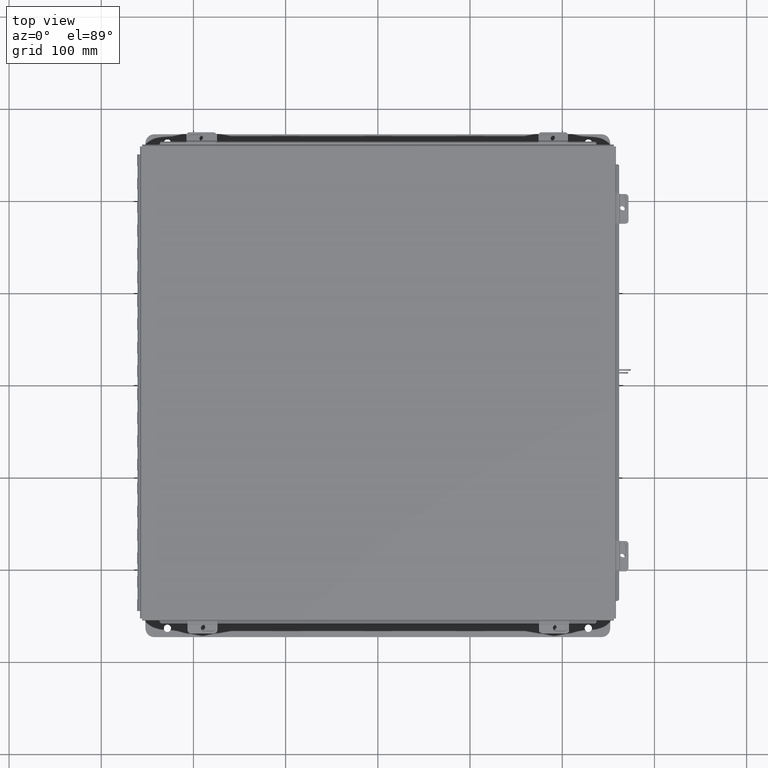
[diagram: clean part render]
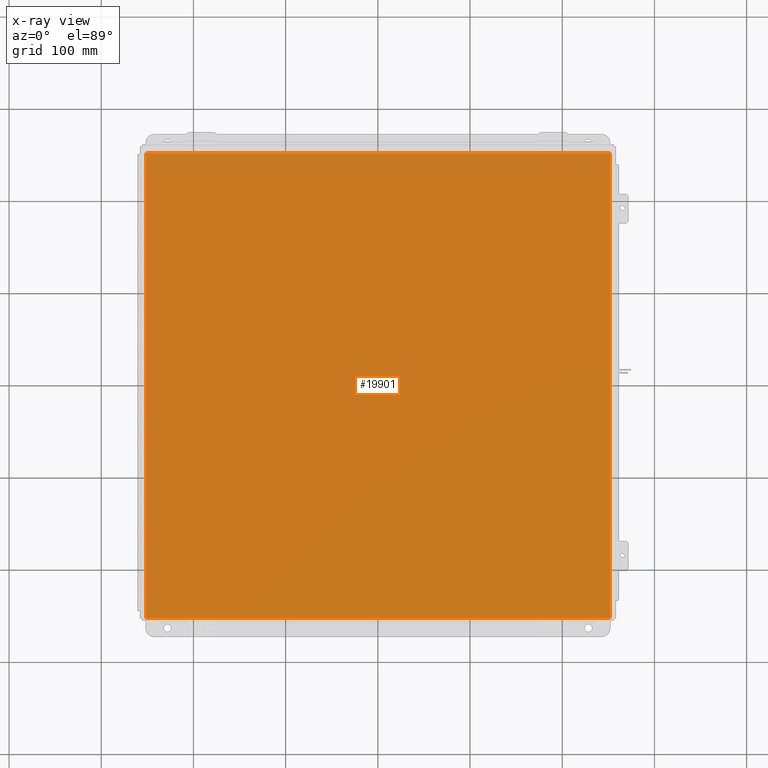
[diagram: x-ray — body ghosted, one internal face saturated and labeled with its STEP entity id]
A machine part, top view, then the same camera in x-ray: the body is ghosted and one INTERNAL B-rep face — a face not visible from any outside direction — is saturated and labeled: STEP entity #19901.
In plain terms, the highlighted planar face has unit normal (0, 0, -1).
Its self-contained STEP definition (entity closure, byte-faithful):
#122 = CARTESIAN_POINT ( 'NONE',  ( -9.912299999999998300, 9.925300000000001800, 5.122214988120493500E-017 ) ) ;
#128 = ORIENTED_EDGE ( 'NONE', *, *, #3483, .F. ) ;
#246 = LINE ( 'NONE', #10780, #4272 ) ;
#961 = VERTEX_POINT ( 'NONE', #18680 ) ;
#1749 = ORIENTED_EDGE ( 'NONE', *, *, #22053, .T. ) ;
#3483 = EDGE_CURVE ( 'NONE', #16653, #16713, #4765, .T. ) ;
#3536 = FACE_OUTER_BOUND ( 'NONE', #4971, .T. ) ;
#4272 = VECTOR ( 'NONE', #12456, 39.37007874015748100 ) ;
#4444 = CARTESIAN_POINT ( 'NONE',  ( 0.0000000000000000000, 0.0000000000000000000, 0.0000000000000000000 ) ) ;
#4765 = LINE ( 'NONE', #13376, #5286 ) ;
#4971 = EDGE_LOOP ( 'NONE', ( #5531, #12548, #128, #1749 ) ) ;
#5286 = VECTOR ( 'NONE', #14587, 39.37007874015748100 ) ;
#5531 = ORIENTED_EDGE ( 'NONE', *, *, #9226, .F. ) ;
#5836 = DIRECTION ( 'NONE',  ( 1.000000000000000000, 0.0000000000000000000, 0.0000000000000000000 ) ) ;
#6964 = VECTOR ( 'NONE', #7130, 39.37007874015748100 ) ;
#7130 = DIRECTION ( 'NONE',  ( -0.0000000000000000000, -1.000000000000000000, -0.0000000000000000000 ) ) ;
#7866 = DIRECTION ( 'NONE',  ( 0.0000000000000000000, 0.0000000000000000000, -1.000000000000000000 ) ) ;
#9226 = EDGE_CURVE ( 'NONE', #961, #13601, #12089, .T. ) ;
#9938 = EDGE_CURVE ( 'NONE', #961, #16713, #246, .T. ) ;
#10195 = AXIS2_PLACEMENT_3D ( 'NONE', #4444, #7866, #20071 ) ;
#10780 = CARTESIAN_POINT ( 'NONE',  ( -9.999999999999998200, 9.925300000000001800, 0.0000000000000000000 ) ) ;
#12089 = LINE ( 'NONE', #14074, #6964 ) ;
#12456 = DIRECTION ( 'NONE',  ( -1.000000000000000000, -0.0000000000000000000, -0.0000000000000000000 ) ) ;
#12548 = ORIENTED_EDGE ( 'NONE', *, *, #9938, .T. ) ;
#12692 = CARTESIAN_POINT ( 'NONE',  ( -9.999999999999998200, -9.925299999999998200, 0.0000000000000000000 ) ) ;
#12876 = VECTOR ( 'NONE', #5836, 39.37007874015748100 ) ;
#13003 = PLANE ( 'NONE',  #10195 ) ;
#13376 = CARTESIAN_POINT ( 'NONE',  ( -9.912299999999998300, -9.925299999999998200, 5.122214988120493500E-017 ) ) ;
#13433 = LINE ( 'NONE', #12692, #12876 ) ;
#13601 = VERTEX_POINT ( 'NONE', #14500 ) ;
#13693 = CARTESIAN_POINT ( 'NONE',  ( -9.912299999999998300, -9.925299999999992900, 5.122214988120493500E-017 ) ) ;
#14074 = CARTESIAN_POINT ( 'NONE',  ( 9.912300000000001900, 9.925300000000001800, 5.122214988120493500E-017 ) ) ;
#14500 = CARTESIAN_POINT ( 'NONE',  ( 9.912300000000001900, -9.925299999999998200, 5.122214988120493500E-017 ) ) ;
#14587 = DIRECTION ( 'NONE',  ( -0.0000000000000000000, 1.000000000000000000, -0.0000000000000000000 ) ) ;
#16653 = VERTEX_POINT ( 'NONE', #13693 ) ;
#16713 = VERTEX_POINT ( 'NONE', #122 ) ;
#18680 = CARTESIAN_POINT ( 'NONE',  ( 9.912300000000001900, 9.925299999999998200, 5.122214988120493500E-017 ) ) ;
#19901 = ADVANCED_FACE ( 'NONE', ( #3536 ), #13003, .F. ) ;
#20071 = DIRECTION ( 'NONE',  ( -1.000000000000000000, 0.0000000000000000000, -0.0000000000000000000 ) ) ;
#22053 = EDGE_CURVE ( 'NONE', #16653, #13601, #13433, .T. ) ;